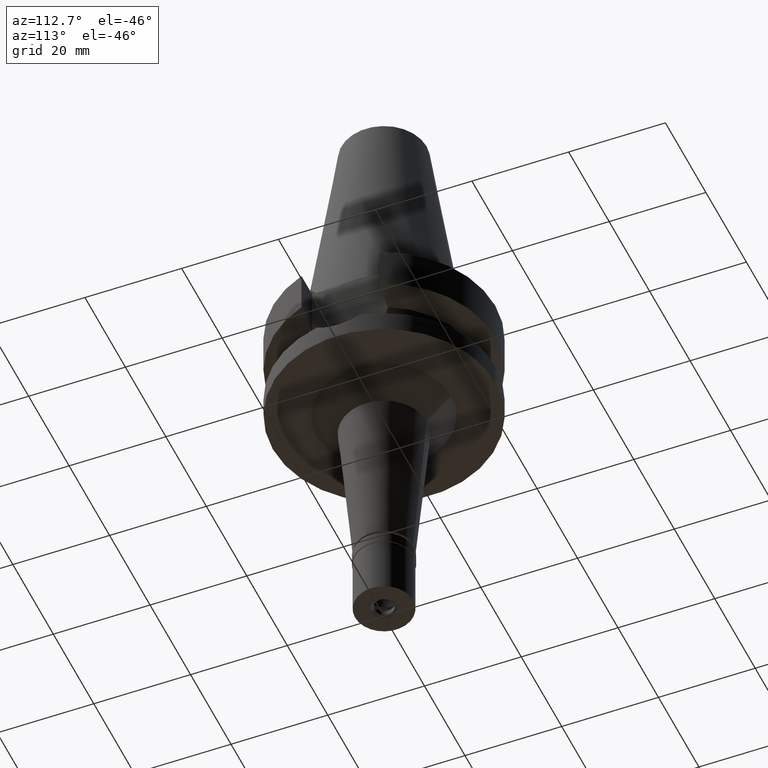
[diagram: clean part render]
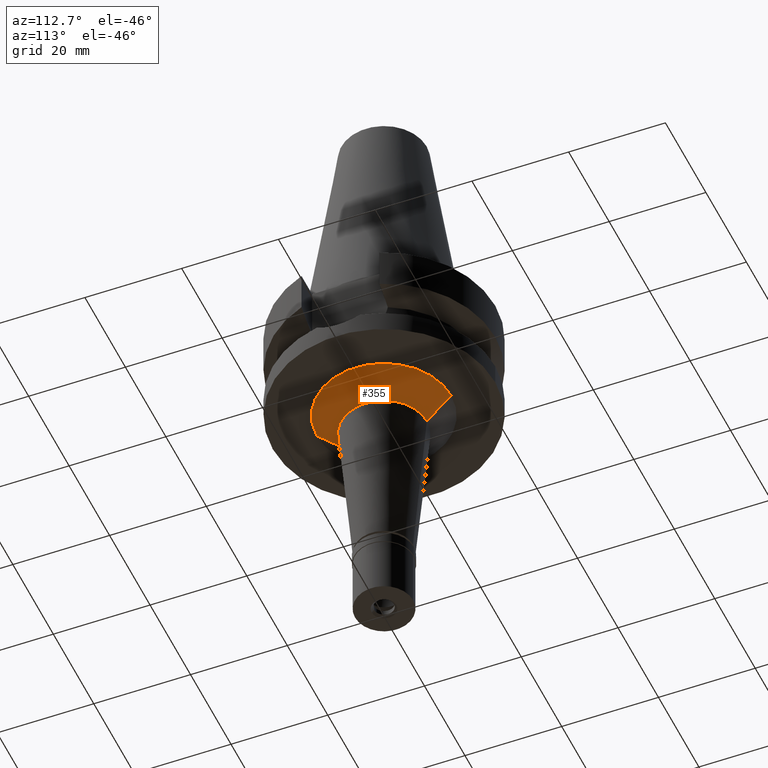
[diagram: same view with one face highlighted and labeled with its STEP entity id]
A machine part, auxiliary view. The second image highlights one B-rep face of the part: STEP entity #355.
In plain terms, the highlighted conical surface has half-angle 45 deg.
Its self-contained STEP definition (entity closure, byte-faithful):
#149 = CARTESIAN_POINT ( 'NONE',  ( 0.0000000000000000000, 13.86962816365000073, -22.00000000000000000 ) ) ;
#216 = FACE_OUTER_BOUND ( 'NONE', #2434, .T. ) ;
#229 = CARTESIAN_POINT ( 'NONE',  ( 0.0000000000000000000, -13.86962816365000073, -22.00000000000000000 ) ) ;
#355 = ADVANCED_FACE ( 'NONE', ( #216 ), #2403, .T. ) ;
#389 = AXIS2_PLACEMENT_3D ( 'NONE', #1238, #2606, #761 ) ;
#492 = AXIS2_PLACEMENT_3D ( 'NONE', #1383, #2742, #1416 ) ;
#511 = CARTESIAN_POINT ( 'NONE',  ( 0.0000000000000000000, -13.86962816365000073, -22.00000000000000000 ) ) ;
#605 = VERTEX_POINT ( 'NONE', #1894 ) ;
#736 = EDGE_CURVE ( 'NONE', #1839, #1193, #1470, .T. ) ;
#761 = DIRECTION ( 'NONE',  ( 0.0000000000000000000, 1.000000000000000000, 0.0000000000000000000 ) ) ;
#937 = VECTOR ( 'NONE', #1437, 1000.000000000000000 ) ;
#1082 = ORIENTED_EDGE ( 'NONE', *, *, #2774, .F. ) ;
#1101 = AXIS2_PLACEMENT_3D ( 'NONE', #1831, #1662, #1123 ) ;
#1102 = DIRECTION ( 'NONE',  ( 0.0000000000000000000, -0.7071067811864980568, -0.7071067811865969777 ) ) ;
#1123 = DIRECTION ( 'NONE',  ( 0.0000000000000000000, 1.000000000000000000, 0.0000000000000000000 ) ) ;
#1193 = VERTEX_POINT ( 'NONE', #1354 ) ;
#1200 = VERTEX_POINT ( 'NONE', #2263 ) ;
#1238 = CARTESIAN_POINT ( 'NONE',  ( 0.0000000000000000000, 0.0000000000000000000, -22.00000000000000000 ) ) ;
#1354 = CARTESIAN_POINT ( 'NONE',  ( 0.0000000000000000000, -8.869628163650000729, -27.00000000000000000 ) ) ;
#1383 = CARTESIAN_POINT ( 'NONE',  ( 0.0000000000000000000, 0.0000000000000000000, -27.00000000000000000 ) ) ;
#1416 = DIRECTION ( 'NONE',  ( 0.0000000000000000000, -1.000000000000000000, 0.0000000000000000000 ) ) ;
#1433 = EDGE_CURVE ( 'NONE', #605, #1839, #2397, .T. ) ;
#1437 = DIRECTION ( 'NONE',  ( 0.0000000000000000000, 0.7071067811864980568, -0.7071067811865969777 ) ) ;
#1470 = LINE ( 'NONE', #511, #937 ) ;
#1662 = DIRECTION ( 'NONE',  ( 0.0000000000000000000, 0.0000000000000000000, 1.000000000000000000 ) ) ;
#1722 = LINE ( 'NONE', #149, #2125 ) ;
#1831 = CARTESIAN_POINT ( 'NONE',  ( 0.0000000000000000000, 0.0000000000000000000, -24.50000000000000000 ) ) ;
#1839 = VERTEX_POINT ( 'NONE', #229 ) ;
#1894 = CARTESIAN_POINT ( 'NONE',  ( 0.0000000000000000000, 13.86962816365000073, -22.00000000000000000 ) ) ;
#1899 = ORIENTED_EDGE ( 'NONE', *, *, #736, .T. ) ;
#1983 = ORIENTED_EDGE ( 'NONE', *, *, #1433, .T. ) ;
#2125 = VECTOR ( 'NONE', #1102, 1000.000000000000000 ) ;
#2216 = CIRCLE ( 'NONE', #492, 8.869628163650000729 ) ;
#2226 = EDGE_CURVE ( 'NONE', #1193, #1200, #2216, .T. ) ;
#2263 = CARTESIAN_POINT ( 'NONE',  ( 0.0000000000000000000, 8.869628163650000729, -27.00000000000000000 ) ) ;
#2397 = CIRCLE ( 'NONE', #389, 13.86962816365000073 ) ;
#2403 = CONICAL_SURFACE ( 'NONE', #1101, 11.36962816365000073, 0.7853981633972997312 ) ;
#2426 = ORIENTED_EDGE ( 'NONE', *, *, #2226, .T. ) ;
#2434 = EDGE_LOOP ( 'NONE', ( #1983, #1899, #2426, #1082 ) ) ;
#2606 = DIRECTION ( 'NONE',  ( 0.0000000000000000000, 0.0000000000000000000, -1.000000000000000000 ) ) ;
#2742 = DIRECTION ( 'NONE',  ( 0.0000000000000000000, 0.0000000000000000000, 1.000000000000000000 ) ) ;
#2774 = EDGE_CURVE ( 'NONE', #605, #1200, #1722, .T. ) ;